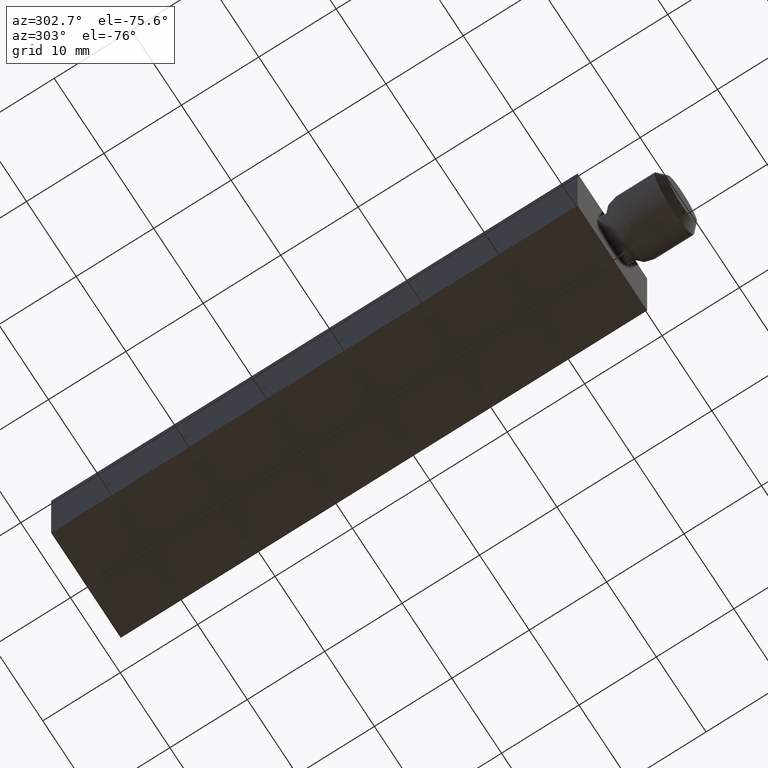
[diagram: clean part render]
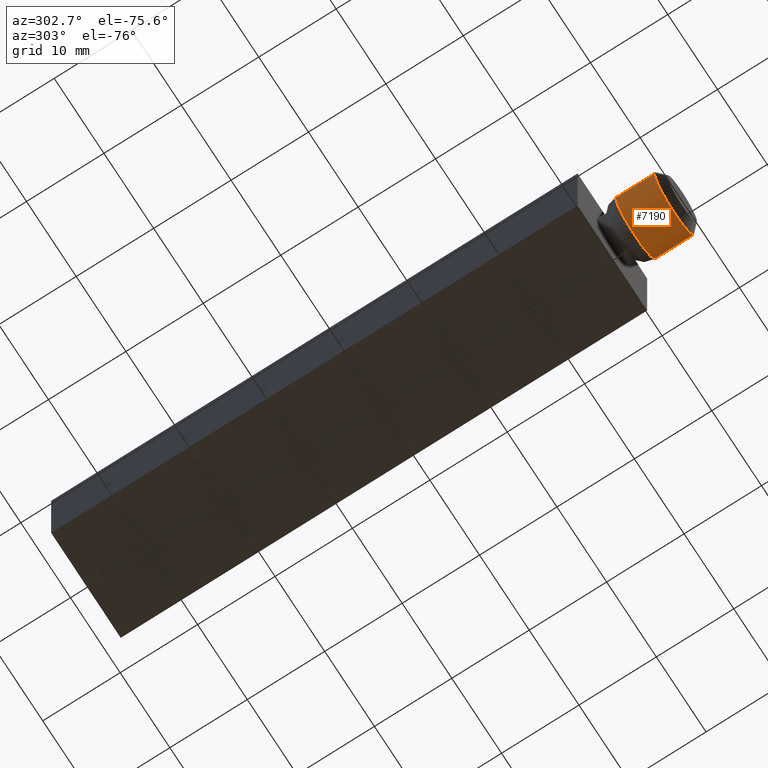
[diagram: same view with one face highlighted and labeled with its STEP entity id]
A machine part, auxiliary view. The second image highlights one B-rep face of the part: STEP entity #7190.
In plain terms, the highlighted cylindrical surface (partial cylindrical patch) has radius 4 mm, axis along (-0, 1, -0).
Its self-contained STEP definition (entity closure, byte-faithful):
#405 = VERTEX_POINT ( 'NONE', #8244 ) ;
#742 = EDGE_LOOP ( 'NONE', ( #10102, #11668, #12075, #8267 ) ) ;
#2176 = CARTESIAN_POINT ( 'NONE',  ( -4.000000000000005300, -4.898587196589418700E-016, 0.0000000000000000000 ) ) ;
#2188 = DIRECTION ( 'NONE',  ( -1.224646799147353000E-016, 1.000000000000000000, -0.0000000000000000000 ) ) ;
#3012 = AXIS2_PLACEMENT_3D ( 'NONE', #3252, #9926, #4214 ) ;
#3072 = EDGE_CURVE ( 'NONE', #405, #6527, #7858, .T. ) ;
#3252 = CARTESIAN_POINT ( 'NONE',  ( 3.673940397442059900E-016, -3.000000000000000400, 0.0000000000000000000 ) ) ;
#4181 = DIRECTION ( 'NONE',  ( -1.224646799147353000E-016, 1.000000000000000000, -0.0000000000000000000 ) ) ;
#4214 = DIRECTION ( 'NONE',  ( -1.000000000000000000, -1.084202172485504400E-016, 0.0000000000000000000 ) ) ;
#4334 = VERTEX_POINT ( 'NONE', #11260 ) ;
#4574 = DIRECTION ( 'NONE',  ( -1.224646799147353000E-016, 1.000000000000000000, -0.0000000000000000000 ) ) ;
#4613 = DIRECTION ( 'NONE',  ( -1.000000000000000000, -1.224646799147353000E-016, 0.0000000000000000000 ) ) ;
#4850 = CARTESIAN_POINT ( 'NONE',  ( 4.000000000000000000, -3.000000000000000000, 4.898587196589416800E-016 ) ) ;
#4958 = DIRECTION ( 'NONE',  ( -1.000000000000000000, 0.0000000000000000000, 0.0000000000000000000 ) ) ;
#5139 = CIRCLE ( 'NONE', #6186, 4.000000000000009800 ) ;
#5932 = CARTESIAN_POINT ( 'NONE',  ( 4.000000000000005300, 4.898587196589418700E-016, 4.898587196589419700E-016 ) ) ;
#6186 = AXIS2_PLACEMENT_3D ( 'NONE', #7965, #8007, #4958 ) ;
#6467 = CARTESIAN_POINT ( 'NONE',  ( 0.0000000000000000000, 0.0000000000000000000, 0.0000000000000000000 ) ) ;
#6527 = VERTEX_POINT ( 'NONE', #11770 ) ;
#7190 = ADVANCED_FACE ( 'NONE', ( #11142 ), #9367, .T. ) ;
#7858 = LINE ( 'NONE', #2176, #8460 ) ;
#7921 = EDGE_CURVE ( 'NONE', #4334, #8554, #11898, .T. ) ;
#7965 = CARTESIAN_POINT ( 'NONE',  ( 9.797174393178815800E-016, -7.999999999999992900, 0.0000000000000000000 ) ) ;
#8007 = DIRECTION ( 'NONE',  ( -1.224646799147353000E-016, 1.000000000000000000, -0.0000000000000000000 ) ) ;
#8118 = EDGE_CURVE ( 'NONE', #4334, #405, #5139, .T. ) ;
#8244 = CARTESIAN_POINT ( 'NONE',  ( -4.000000000000008000, -7.999999999999992900, 0.0000000000000000000 ) ) ;
#8267 = ORIENTED_EDGE ( 'NONE', *, *, #8724, .F. ) ;
#8460 = VECTOR ( 'NONE', #4181, 1000.000000000000000 ) ;
#8554 = VERTEX_POINT ( 'NONE', #4850 ) ;
#8724 = EDGE_CURVE ( 'NONE', #8554, #6527, #11446, .T. ) ;
#9367 = CYLINDRICAL_SURFACE ( 'NONE', #9873, 4.000000000000005300 ) ;
#9873 = AXIS2_PLACEMENT_3D ( 'NONE', #6467, #4574, #4613 ) ;
#9926 = DIRECTION ( 'NONE',  ( -1.224646799147353000E-016, 1.000000000000000000, -0.0000000000000000000 ) ) ;
#10102 = ORIENTED_EDGE ( 'NONE', *, *, #7921, .F. ) ;
#11142 = FACE_OUTER_BOUND ( 'NONE', #742, .T. ) ;
#11260 = CARTESIAN_POINT ( 'NONE',  ( 4.000000000000011500, -7.999999999999992900, 4.898587196589424700E-016 ) ) ;
#11446 = CIRCLE ( 'NONE', #3012, 4.000000000000000000 ) ;
#11668 = ORIENTED_EDGE ( 'NONE', *, *, #8118, .T. ) ;
#11770 = CARTESIAN_POINT ( 'NONE',  ( -4.000000000000000000, -3.000000000000000900, 0.0000000000000000000 ) ) ;
#11898 = LINE ( 'NONE', #5932, #12214 ) ;
#12075 = ORIENTED_EDGE ( 'NONE', *, *, #3072, .T. ) ;
#12214 = VECTOR ( 'NONE', #2188, 1000.000000000000000 ) ;